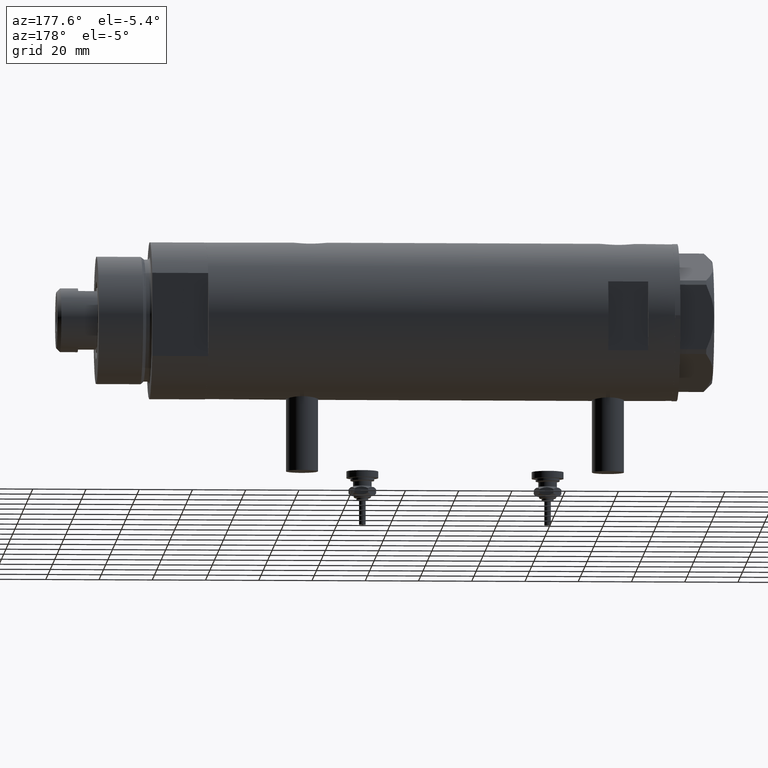
[diagram: clean part render]
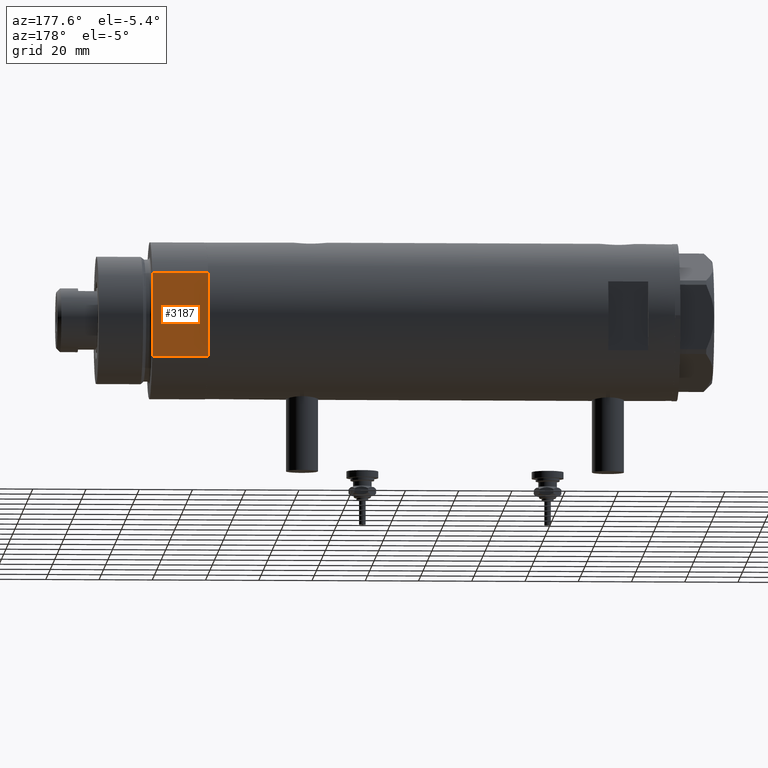
[diagram: same view with one face highlighted and labeled with its STEP entity id]
A machine part, auxiliary view. The second image highlights one B-rep face of the part: STEP entity #3187.
In plain terms, the highlighted planar face has unit normal (0, -1, -0).
Its self-contained STEP definition (entity closure, byte-faithful):
#411 = DIRECTION ( 'NONE',  ( -0.000000000000000000, -0.000000000000000000, 1.000000000000000000 ) ) ;
#491 = CARTESIAN_POINT ( 'NONE',  ( 15.66045976336583045, 24.99999999999999645, 20.99999999999999645 ) ) ;
#560 = CARTESIAN_POINT ( 'NONE',  ( -7.141428428542853091, 25.00000000000000000, 0.000000000000000000 ) ) ;
#576 = PLANE ( 'NONE',  #3416 ) ;
#598 = ORIENTED_EDGE ( 'NONE', *, *, #1856, .F. ) ;
#631 = FACE_OUTER_BOUND ( 'NONE', #1050, .T. ) ;
#765 = VERTEX_POINT ( 'NONE', #560 ) ;
#974 = LINE ( 'NONE', #2262, #1484 ) ;
#1047 = VECTOR ( 'NONE', #2759, 1000.000000000000000 ) ;
#1050 = EDGE_LOOP ( 'NONE', ( #5182, #598, #4402, #2424, #1959, #3723 ) ) ;
#1484 = VECTOR ( 'NONE', #5914, 1000.000000000000000 ) ;
#1486 = DIRECTION ( 'NONE',  ( 0.000000000000000000, -1.000000000000000000, 0.000000000000000000 ) ) ;
#1612 = DIRECTION ( 'NONE',  ( 1.000000000000000000, 0.000000000000000000, 0.000000000000000000 ) ) ;
#1729 = CARTESIAN_POINT ( 'NONE',  ( -15.66045976336583401, 25.00000000000000000, 0.000000000000000000 ) ) ;
#1856 = EDGE_CURVE ( 'NONE', #5693, #2693, #3908, .T. ) ;
#1914 = DIRECTION ( 'NONE',  ( 0.000000000000000000, -0.000000000000000000, -1.000000000000000000 ) ) ;
#1959 = ORIENTED_EDGE ( 'NONE', *, *, #4536, .F. ) ;
#2124 = LINE ( 'NONE', #2999, #4009 ) ;
#2262 = CARTESIAN_POINT ( 'NONE',  ( -15.66045976336583401, 25.00000000000000000, 0.000000000000000000 ) ) ;
#2272 = EDGE_CURVE ( 'NONE', #765, #4363, #974, .T. ) ;
#2424 = ORIENTED_EDGE ( 'NONE', *, *, #2272, .F. ) ;
#2564 = VECTOR ( 'NONE', #1612, 1000.000000000000000 ) ;
#2687 = CARTESIAN_POINT ( 'NONE',  ( 15.66045976336583401, 25.00000000000000000, 0.000000000000000000 ) ) ;
#2693 = VERTEX_POINT ( 'NONE', #491 ) ;
#2759 = DIRECTION ( 'NONE',  ( -0.000000000000000000, -0.000000000000000000, 1.000000000000000000 ) ) ;
#2969 = VECTOR ( 'NONE', #3117, 1000.000000000000000 ) ;
#2999 = CARTESIAN_POINT ( 'NONE',  ( -15.66045976336583401, 25.00000000000000000, 21.00000000000000000 ) ) ;
#3117 = DIRECTION ( 'NONE',  ( 1.000000000000000000, 0.000000000000000000, 0.000000000000000000 ) ) ;
#3187 = ADVANCED_FACE ( 'NONE', ( #631 ), #576, .F. ) ;
#3402 = VERTEX_POINT ( 'NONE', #1729 ) ;
#3416 = AXIS2_PLACEMENT_3D ( 'NONE', #4231, #1486, #1914 ) ;
#3512 = VECTOR ( 'NONE', #411, 1000.000000000000000 ) ;
#3543 = LINE ( 'NONE', #5363, #2969 ) ;
#3723 = ORIENTED_EDGE ( 'NONE', *, *, #5508, .T. ) ;
#3872 = CARTESIAN_POINT ( 'NONE',  ( 15.66045976336582690, 25.00000000000000000, 0.000000000000000000 ) ) ;
#3903 = CARTESIAN_POINT ( 'NONE',  ( -15.66045976336583401, 25.00000000000000000, 0.000000000000000000 ) ) ;
#3908 = LINE ( 'NONE', #2687, #3512 ) ;
#4009 = VECTOR ( 'NONE', #4885, 1000.000000000000000 ) ;
#4216 = VERTEX_POINT ( 'NONE', #5458 ) ;
#4231 = CARTESIAN_POINT ( 'NONE',  ( -15.66045976336583401, 25.00000000000000000, 0.000000000000000000 ) ) ;
#4363 = VERTEX_POINT ( 'NONE', #4647 ) ;
#4402 = ORIENTED_EDGE ( 'NONE', *, *, #5829, .F. ) ;
#4536 = EDGE_CURVE ( 'NONE', #3402, #765, #5279, .T. ) ;
#4647 = CARTESIAN_POINT ( 'NONE',  ( 7.141428428542853091, 25.00000000000000000, 0.000000000000000000 ) ) ;
#4885 = DIRECTION ( 'NONE',  ( 1.000000000000000000, 0.000000000000000000, 0.000000000000000000 ) ) ;
#5035 = LINE ( 'NONE', #5521, #1047 ) ;
#5182 = ORIENTED_EDGE ( 'NONE', *, *, #5728, .T. ) ;
#5279 = LINE ( 'NONE', #3903, #2564 ) ;
#5363 = CARTESIAN_POINT ( 'NONE',  ( -15.66045976336583401, 25.00000000000000000, 0.000000000000000000 ) ) ;
#5458 = CARTESIAN_POINT ( 'NONE',  ( -15.66045976336583045, 24.99999999999999645, 21.00000000000000355 ) ) ;
#5508 = EDGE_CURVE ( 'NONE', #3402, #4216, #5035, .T. ) ;
#5521 = CARTESIAN_POINT ( 'NONE',  ( -15.66045976336583401, 25.00000000000000000, 0.000000000000000000 ) ) ;
#5693 = VERTEX_POINT ( 'NONE', #3872 ) ;
#5728 = EDGE_CURVE ( 'NONE', #4216, #2693, #2124, .T. ) ;
#5829 = EDGE_CURVE ( 'NONE', #4363, #5693, #3543, .T. ) ;
#5914 = DIRECTION ( 'NONE',  ( 1.000000000000000000, 0.000000000000000000, 0.000000000000000000 ) ) ;